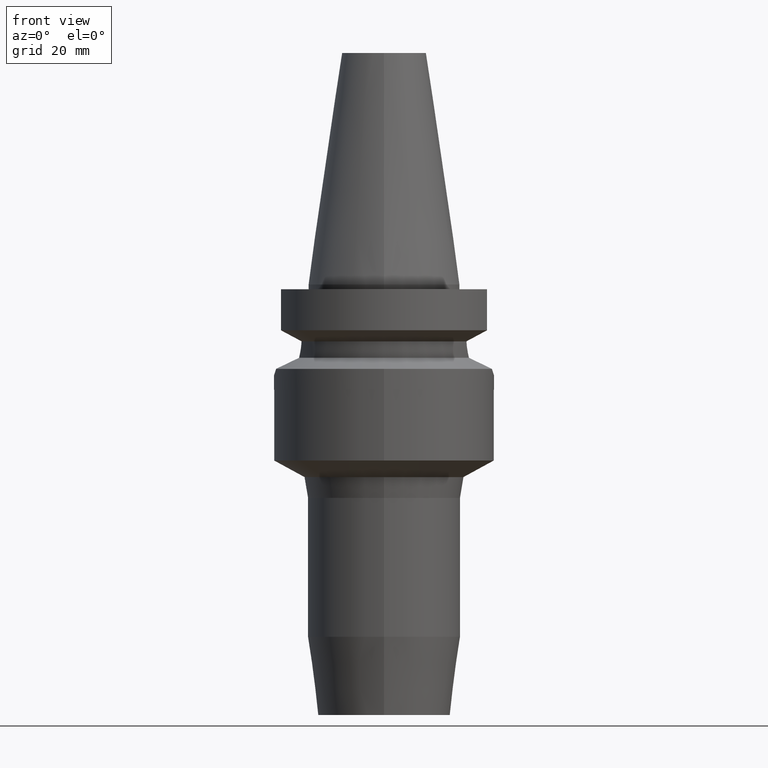
[diagram: clean part render]
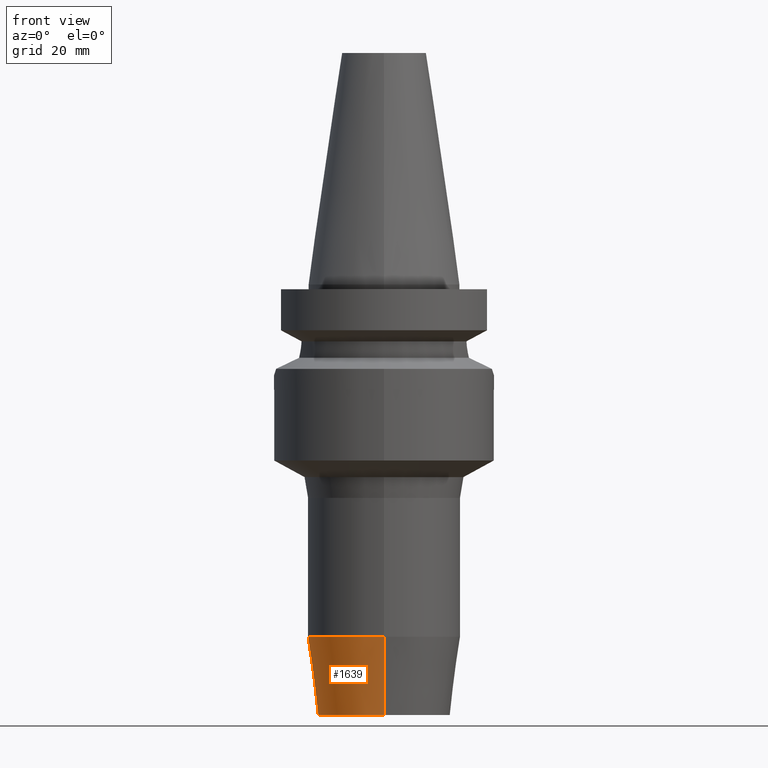
[diagram: same view with one face highlighted and labeled with its STEP entity id]
A machine part, front view. The second image highlights one B-rep face of the part: STEP entity #1639.
In plain terms, the highlighted conical surface has half-angle 7.5 deg.
Its self-contained STEP definition (entity closure, byte-faithful):
#362=CARTESIAN_POINT('',(0.E0,0.E0,-9.E1));
#363=DIRECTION('',(0.E0,0.E0,1.E0));
#364=DIRECTION('',(0.E0,1.E0,0.E0));
#365=AXIS2_PLACEMENT_3D('',#362,#363,#364);
#386=DIRECTION('',(0.E0,-1.305261922200E-1,-9.914448613738E-1));
#387=VECTOR('',#386,1.650626562651E1);
#388=CARTESIAN_POINT('',(0.E0,1.6E1,-7.363494776413E1));
#389=LINE('',#388,#387);
#401=CARTESIAN_POINT('',(0.E0,0.E0,-7.363494776413E1));
#402=DIRECTION('',(0.E0,0.E0,1.E0));
#403=DIRECTION('',(0.E0,1.E0,0.E0));
#404=AXIS2_PLACEMENT_3D('',#401,#402,#403);
#409=DIRECTION('',(0.E0,1.305261922200E-1,-9.914448613738E-1));
#410=VECTOR('',#409,1.650626562651E1);
#411=CARTESIAN_POINT('',(0.E0,-1.6E1,-7.363494776413E1));
#412=LINE('',#411,#410);
#1170=CARTESIAN_POINT('',(0.E0,-1.38455E1,-9.E1));
#1171=CARTESIAN_POINT('',(0.E0,1.38455E1,-9.E1));
#1172=VERTEX_POINT('',#1170);
#1173=VERTEX_POINT('',#1171);
#1174=CARTESIAN_POINT('',(0.E0,1.6E1,-7.363494776413E1));
#1175=VERTEX_POINT('',#1174);
#1176=CARTESIAN_POINT('',(0.E0,-1.6E1,-7.363494776413E1));
#1177=VERTEX_POINT('',#1176);
#1627=CARTESIAN_POINT('',(0.E0,0.E0,-8.181747388207E1));
#1628=DIRECTION('',(0.E0,0.E0,1.E0));
#1629=DIRECTION('',(0.E0,1.E0,0.E0));
#1630=AXIS2_PLACEMENT_3D('',#1627,#1628,#1629);
#1631=CONICAL_SURFACE('',#1630,1.492275E1,7.5E0);
#1632=ORIENTED_EDGE('',*,*,#1617,.F.);
#1634=ORIENTED_EDGE('',*,*,#1633,.T.);
#1635=ORIENTED_EDGE('',*,*,#1620,.T.);
#1636=ORIENTED_EDGE('',*,*,#1603,.F.);
#1637=EDGE_LOOP('',(#1632,#1634,#1635,#1636));
#1638=FACE_OUTER_BOUND('',#1637,.F.);
#366=CIRCLE('',#365,1.38455E1);
#405=CIRCLE('',#404,1.6E1);
#1603=EDGE_CURVE('',#1173,#1172,#366,.T.);
#1617=EDGE_CURVE('',#1175,#1173,#389,.T.);
#1620=EDGE_CURVE('',#1177,#1172,#412,.T.);
#1633=EDGE_CURVE('',#1175,#1177,#405,.T.);
#1639=ADVANCED_FACE('',(#1638),#1631,.T.);